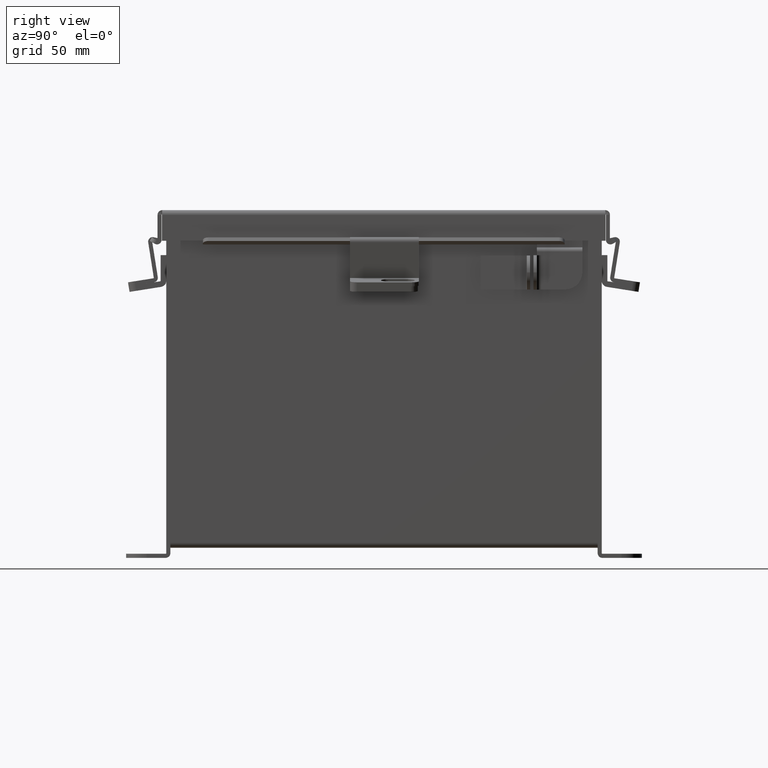
[diagram: clean part render]
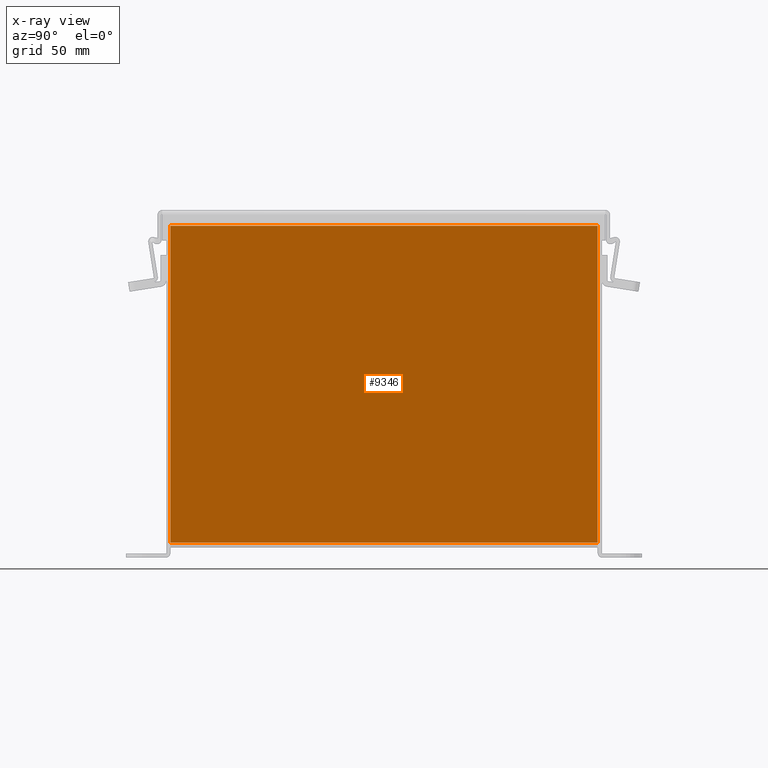
[diagram: x-ray — body ghosted, one internal face saturated and labeled with its STEP entity id]
A machine part, right view, then the same camera in x-ray: the body is ghosted and one INTERNAL B-rep face — a face not visible from any outside direction — is saturated and labeled: STEP entity #9346.
In plain terms, the highlighted planar face has unit normal (-1, 0, 0).
Its self-contained STEP definition (entity closure, byte-faithful):
#130 = CARTESIAN_POINT ( 'NONE',  ( 2.925300000000020900, 3.925299999999999100, 5.850600000000000000 ) ) ;
#500 = DIRECTION ( 'NONE',  ( -3.455316574900958600E-015, -0.0000000000000000000, -1.000000000000000000 ) ) ;
#899 = CARTESIAN_POINT ( 'NONE',  ( 2.925300000000020900, -3.925299999999999100, 5.837599999999999200 ) ) ;
#922 = VECTOR ( 'NONE', #500, 39.37007874015748100 ) ;
#1064 = DIRECTION ( 'NONE',  ( -0.0000000000000000000, -1.000000000000000000, -0.0000000000000000000 ) ) ;
#1155 = VERTEX_POINT ( 'NONE', #11834 ) ;
#1374 = EDGE_CURVE ( 'NONE', #5011, #1741, #7242, .T. ) ;
#1741 = VERTEX_POINT ( 'NONE', #9673 ) ;
#1785 = CARTESIAN_POINT ( 'NONE',  ( 2.925300000000000500, -3.925299999999999100, 0.0000000000000000000 ) ) ;
#2188 = VERTEX_POINT ( 'NONE', #15231 ) ;
#2307 = PLANE ( 'NONE',  #9831 ) ;
#2626 = ORIENTED_EDGE ( 'NONE', *, *, #11277, .F. ) ;
#2705 = ORIENTED_EDGE ( 'NONE', *, *, #3316, .F. ) ;
#3316 = EDGE_CURVE ( 'NONE', #1155, #5011, #8422, .T. ) ;
#3476 = DIRECTION ( 'NONE',  ( 3.455316574900958600E-015, 0.0000000000000000000, 1.000000000000000000 ) ) ;
#3492 = EDGE_LOOP ( 'NONE', ( #11500, #2705, #15257, #2626 ) ) ;
#4766 = VECTOR ( 'NONE', #13993, 39.37007874015748100 ) ;
#5011 = VERTEX_POINT ( 'NONE', #899 ) ;
#5997 = DIRECTION ( 'NONE',  ( 3.455316574900958600E-015, -1.867738689135653700E-016, 1.000000000000000000 ) ) ;
#6234 = FACE_OUTER_BOUND ( 'NONE', #3492, .T. ) ;
#6867 = CARTESIAN_POINT ( 'NONE',  ( 2.925300000000000500, -3.925299999999999100, 0.01300000000000011600 ) ) ;
#7026 = CARTESIAN_POINT ( 'NONE',  ( 2.925300000000000500, 0.0000000000000000000, -1.036394832596379800E-014 ) ) ;
#7242 = LINE ( 'NONE', #1785, #922 ) ;
#8422 = LINE ( 'NONE', #15324, #8785 ) ;
#8785 = VECTOR ( 'NONE', #1064, 39.37007874015748100 ) ;
#9346 = ADVANCED_FACE ( 'NONE', ( #6234 ), #2307, .T. ) ;
#9673 = CARTESIAN_POINT ( 'NONE',  ( 2.925300000000000500, -3.925299999999999100, 0.01300000000000006500 ) ) ;
#9831 = AXIS2_PLACEMENT_3D ( 'NONE', #7026, #10602, #3476 ) ;
#9981 = EDGE_CURVE ( 'NONE', #2188, #1155, #11683, .T. ) ;
#10602 = DIRECTION ( 'NONE',  ( -1.000000000000000000, 0.0000000000000000000, 3.455316574900958600E-015 ) ) ;
#11277 = EDGE_CURVE ( 'NONE', #1741, #2188, #11842, .T. ) ;
#11321 = VECTOR ( 'NONE', #5997, 39.37007874015748100 ) ;
#11500 = ORIENTED_EDGE ( 'NONE', *, *, #1374, .F. ) ;
#11683 = LINE ( 'NONE', #130, #11321 ) ;
#11834 = CARTESIAN_POINT ( 'NONE',  ( 2.925300000000020900, 3.925299999999999100, 5.837599999999999200 ) ) ;
#11842 = LINE ( 'NONE', #6867, #4766 ) ;
#13993 = DIRECTION ( 'NONE',  ( 2.404758783435167000E-031, 1.000000000000000000, 6.959590333641414100E-017 ) ) ;
#15231 = CARTESIAN_POINT ( 'NONE',  ( 2.925300000000000500, 3.925300000000000500, 0.01300000000000069700 ) ) ;
#15257 = ORIENTED_EDGE ( 'NONE', *, *, #9981, .F. ) ;
#15324 = CARTESIAN_POINT ( 'NONE',  ( 2.925300000000020900, 3.925299999999999100, 5.837599999999999200 ) ) ;